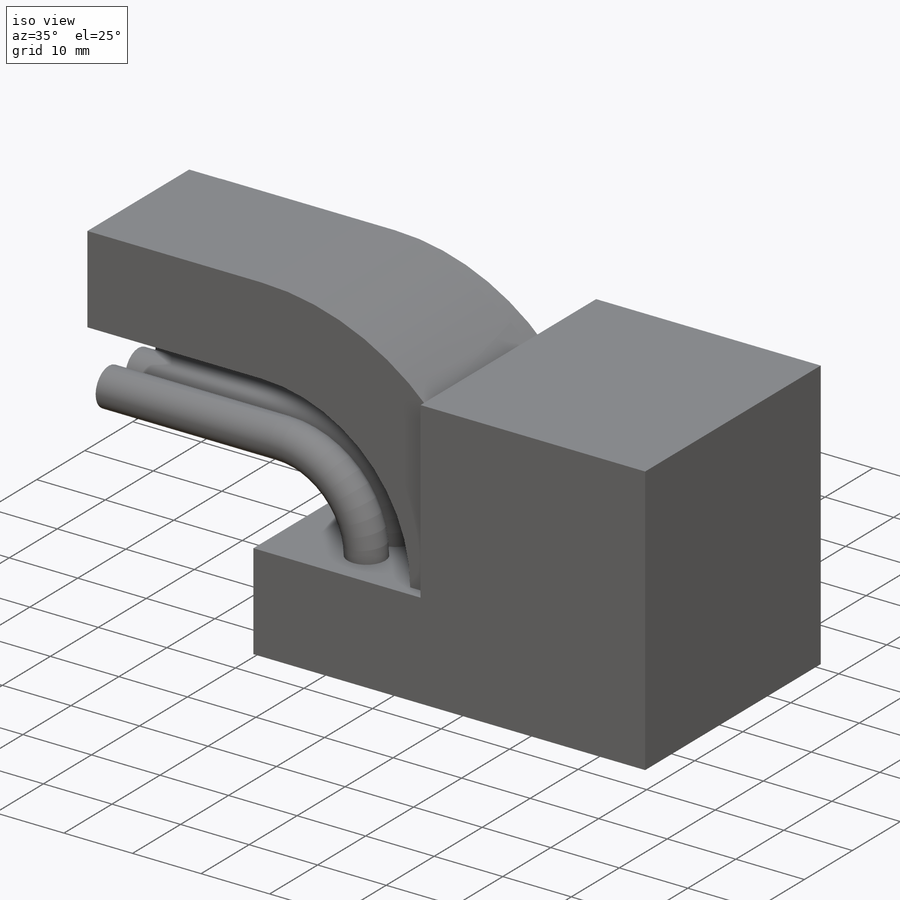
[diagram: iso view]
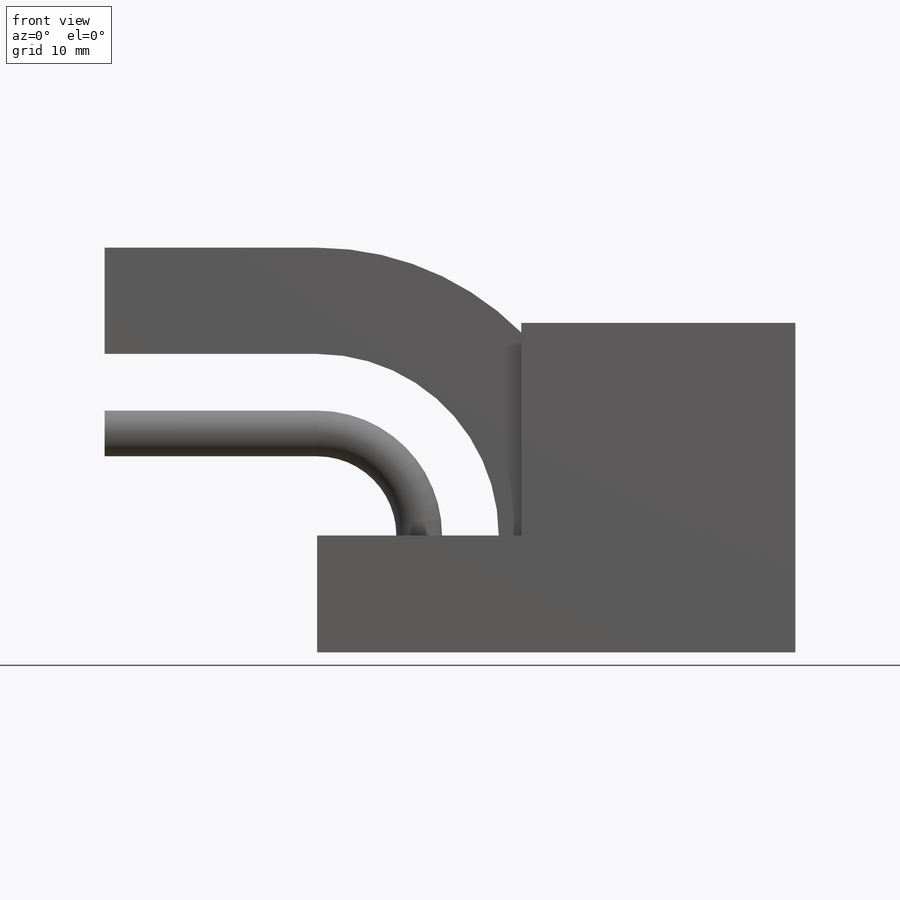
[diagram: front view]
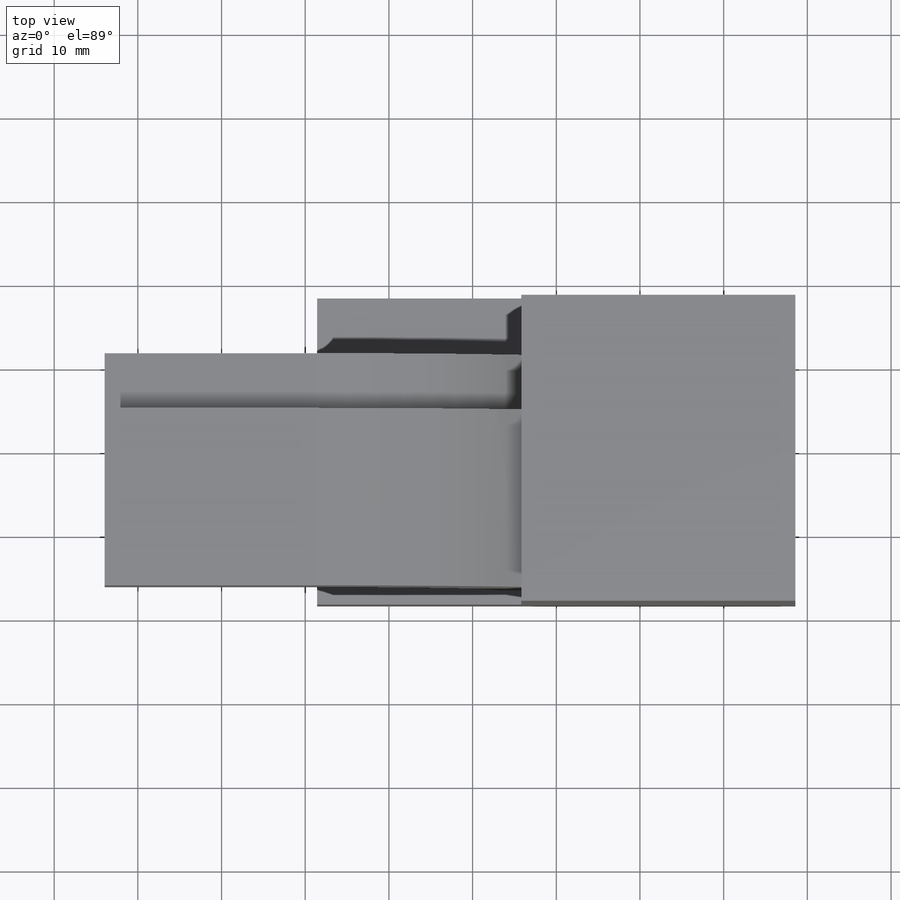
[diagram: top view]
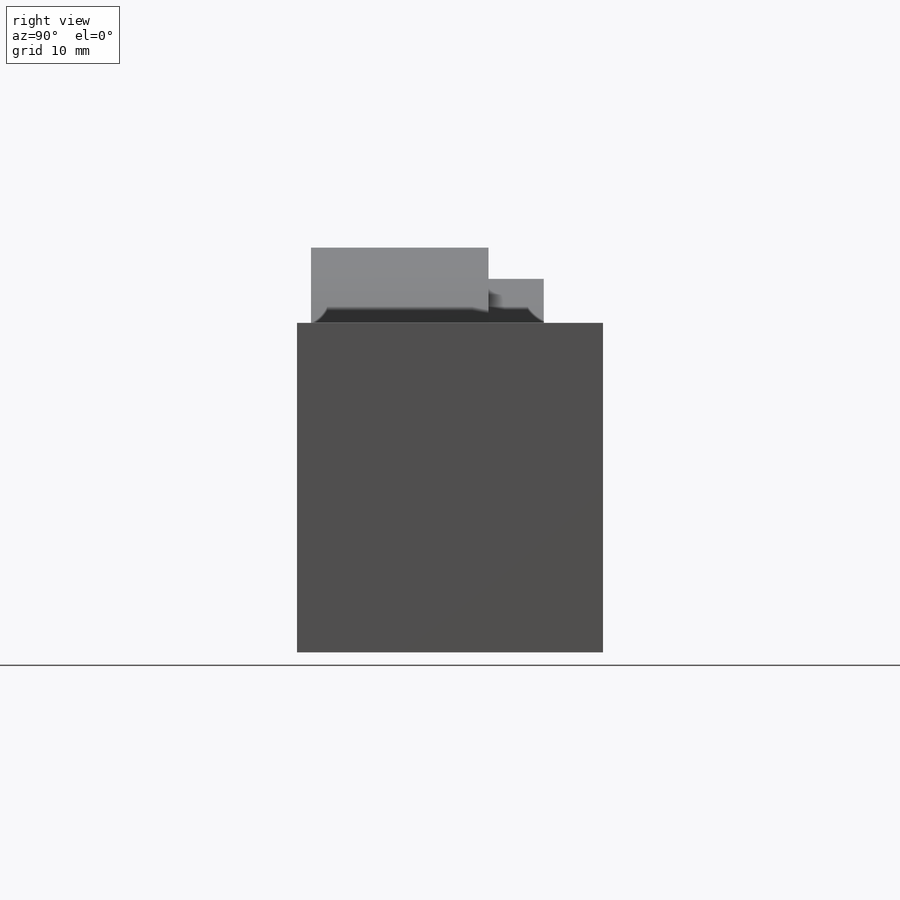
[diagram: right view]
SOLIDWORKS PART (.sldprt)
format: sldprt  version: not decoded by parser v0  size: 247,808 bytes
history: native  units: mm
features: sketch x7, extrude x6, material x1, revolve x1 (+11 scaffold rows collapsed)
feature tree (26):
  scaffold x11  (default folders/planes/origin — collapsed)
  material  "Material <not specified>"
  sketch  "Sketch1"  dims[D1=57.15mm D2=36.576mm]
  extrude  "Boss-Extrude1"  Depth=13.97mm
  sketch  "Sketch2"  dims[D1=32.766mm]
  extrude  "Boss-Extrude2"  Depth=25.4mm
  sketch  "Sketch4"  dims[D1=5.461mm D2=5.461mm D3=5.461mm D4=12.7mm D5=21.209mm D6=6.604mm D7=3.048mm]
  revolve  "Revolve1"  Angle=90deg
  sketch  "Sketch5"
  extrude  "Boss-Extrude4"  Depth=25.4mm
  sketch  "Sketch6"
  extrude  "Boss-Extrude5"  Depth=25.4mm
  sketch  "Sketch7"
  extrude  "Boss-Extrude6"  Depth=25.4mm
  sketch  "Sketch8"
  extrude  "Boss-Extrude7"  Depth=25.4mm
decode coverage: 10 of 14 modeling features carry decoded parameters
note: suppression state not decoded; provenance and decode notes live in map.json
